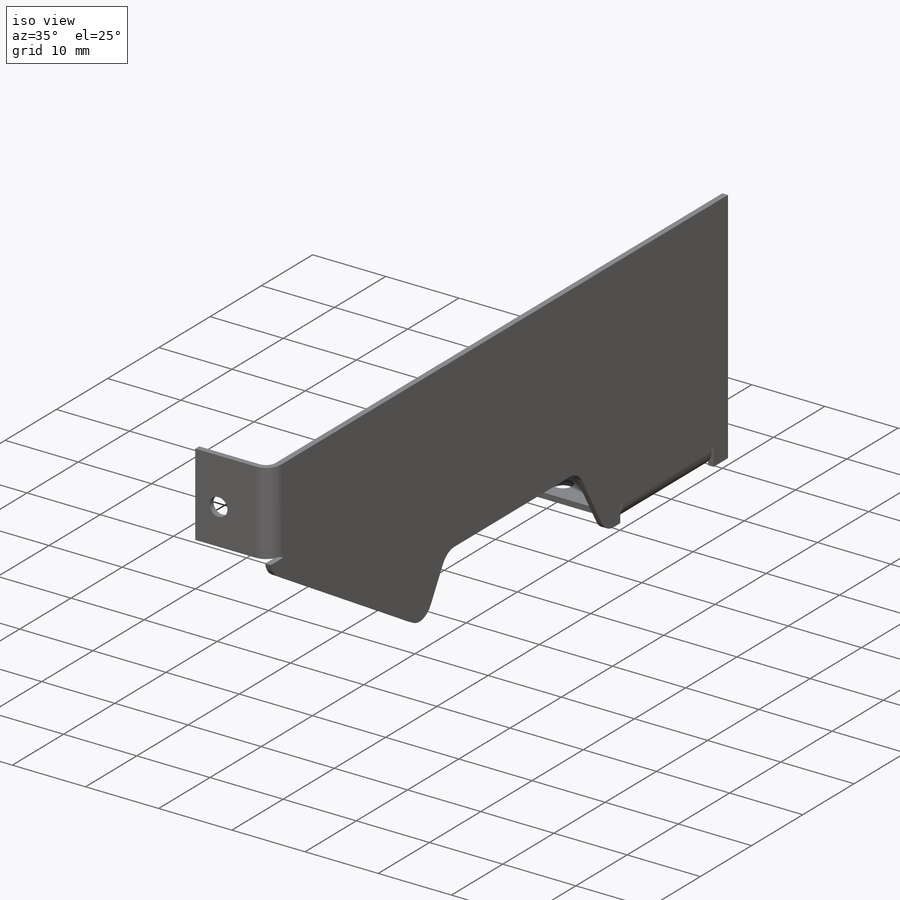
[diagram: iso view]
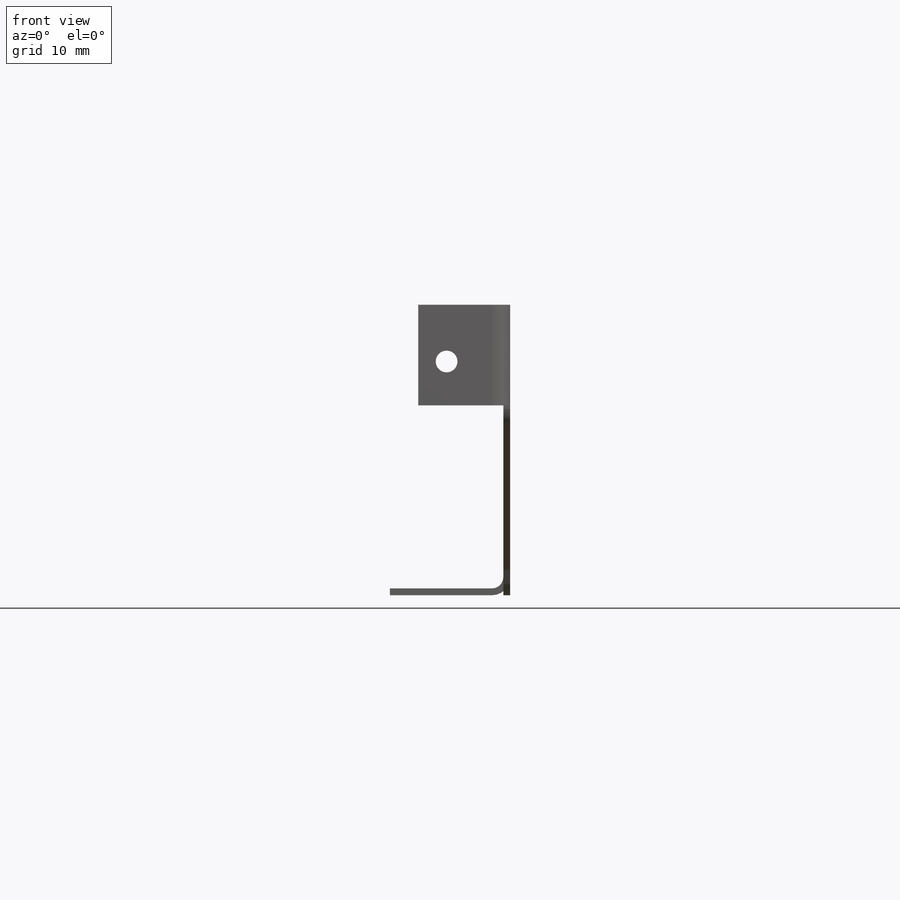
[diagram: front view]
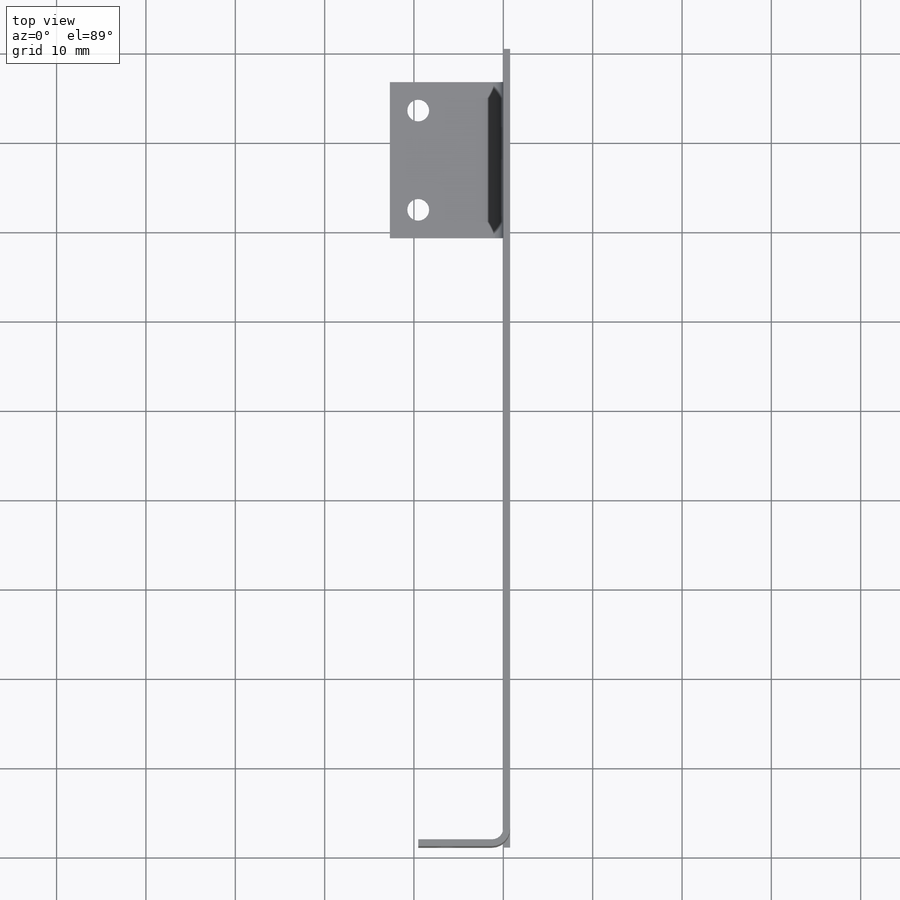
[diagram: top view]
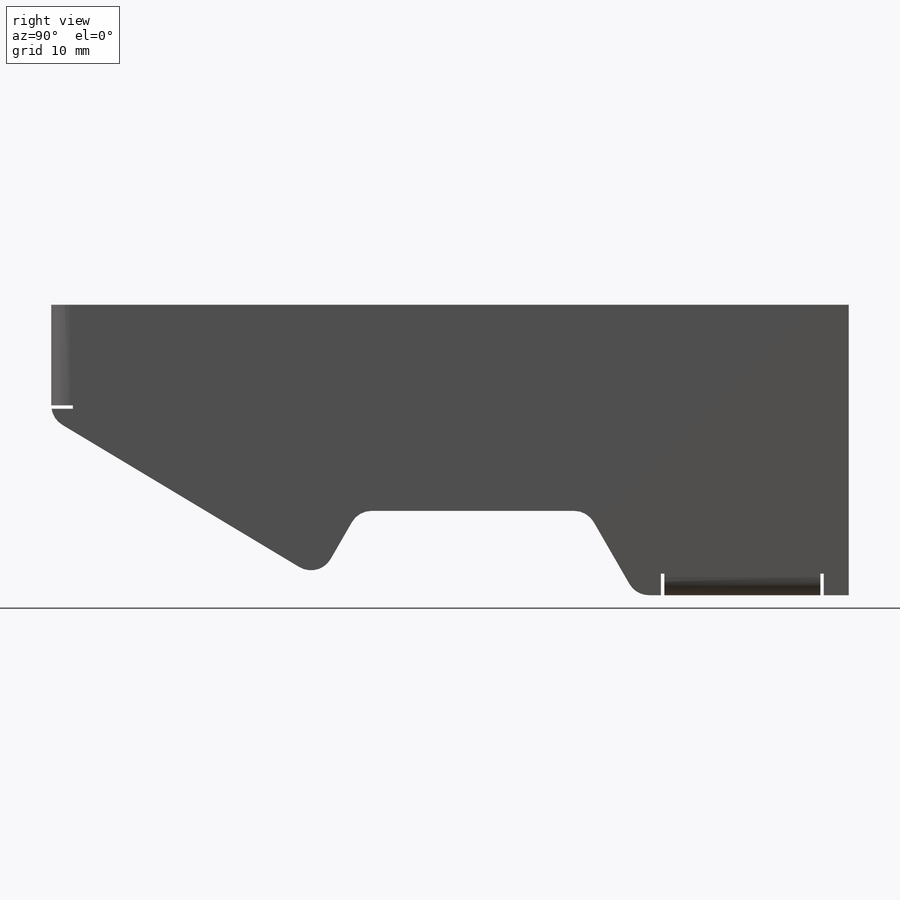
[diagram: right view]
SOLIDWORKS PART (.sldprt)
format: sldprt  version: not decoded by parser v0  size: 627,200 bytes
history: native  units: mm
features: sketch x8, sheet_metal_op x3, material x1, cut_extrude x1, hole x1 + 1 further entry (+15 scaffold rows collapsed; 1 parser-record rows omitted)
feature tree (31):
  scaffold x15  (default folders/planes/origin — collapsed)
  material  "Material <not specified>"
  sketch  "Sketch1"  dims[D1=2.54mm D5=2.54mm D2=7.62mm D3=0.8255mm D4=0.8255mm]
  sheet_metal_op  "Sheet-Metal1"  Thickness=0.762mm
  sheet_metal_op  "Base-Flange1"
  sketch  "Sketch4"  dims[c1.D1=3.175mm c1.D2=17.4625mm c1.D3=12.7mm c2.D1=1.27mm c2.D4=90.0deg c2.D5=1.0 c2.D8=0.381mm c2.D9=0.381mm c3.D1=1.27mm c3.D2=500.0mm c3.D3=0.0mm c3.D6=10.0mm c3.D7=12.7mm c3.Edge-Flange2=0.0]
  sketch  "Sketch7"  dims[D1=9.525mm]
  sheet_metal_op  "EdgeBend2"
  sketch  "Sketch8"
  cut_extrude  "Extrude1"  [1 undecoded]
  hole  "#2 Clearance Hole1"  Diameter=2.4384mm Depth=0.762mm
  sketch  "3DSketch1"  dims[c1.D1=11.1125mm c1.D2=~10.486293mm c1.D3=~10.486293mm c2.D2=3.175mm c2.D3=3.175mm]
  sketch  "Sketch9"  dims[hole-wizard template sketch: 47 standard entries collapsed; hole parameters kept: c15.Hole Depth=0.762mm c15.D3=~14.816244mm c15.Drill Angle=118.0deg]
  "Flat-Pattern1"
  sketch  "Bend-Lines1"
  parser-record x1  (decoder bookkeeping rows leaked as tree rows — omitted from the tree; the rows remain in map.json)
  sketch  "Flatten-<EdgeBend2>1"
decode coverage: 7 of 13 modeling features carry decoded parameters; 1 rows unclassified (native names shown)
note: ~ marks probable driven/reference dimensions
note: 1 parameter value undecoded
note: suppression state not decoded; provenance and decode notes live in map.json
